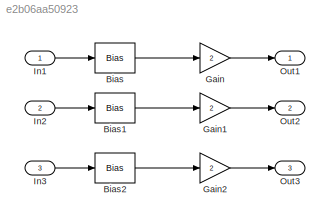
MODEL slx_e2b06aa50923
KIND model
BLOCK [Bias] Bias
  Bias = 2
  SaturateOnIntegerOverflow = off
BLOCK [Bias] Bias1
  Bias = 2
  SaturateOnIntegerOverflow = off
BLOCK [Bias] Bias2
  Bias = 2
  SaturateOnIntegerOverflow = off
BLOCK [Gain] Gain
  Gain = 2
  OutDataTypeStr = uint8
  ParamDataTypeStr = Inherit: Inherit via internal rule
  SaturateOnIntegerOverflow = off
BLOCK [Gain] Gain1
  Gain = 2
  OutDataTypeStr = uint8
  ParamDataTypeStr = Inherit: Inherit via internal rule
  SaturateOnIntegerOverflow = off
BLOCK [Gain] Gain2
  Gain = 2
  OutDataTypeStr = int32
  ParamDataTypeStr = Inherit: Inherit via internal rule
  SaturateOnIntegerOverflow = off
BLOCK [Inport] In1
  IconDisplay = Port number
  OutDataTypeStr = uint8
  PortDimensions = 1
  SampleTime = [0.10000000000000001,0]
  SamplingMode = Sample based
  SignalType = real
BLOCK [Inport] In2
  IconDisplay = Port number
  OutDataTypeStr = uint8
  Port = 2
  PortDimensions = 2
  SampleTime = [0.10000000000000001,0]
  SamplingMode = Sample based
  SignalType = real
BLOCK [Inport] In3
  IconDisplay = Port number
  OutDataTypeStr = int32
  Port = 3
  PortDimensions = 2
  SampleTime = [0.10000000000000001,0]
  SamplingMode = Sample based
  SignalType = real
BLOCK [Outport] Out1
  IconDisplay = Port number
  OutDataTypeStr = uint8
  PortDimensions = 1
  SampleTime = [0.10000000000000001,0]
  SamplingMode = Sample based
  SignalType = real
BLOCK [Outport] Out2
  IconDisplay = Port number
  OutDataTypeStr = uint8
  Port = 2
  PortDimensions = 2
  SampleTime = [0.10000000000000001,0]
  SamplingMode = Sample based
  SignalType = real
BLOCK [Outport] Out3
  IconDisplay = Port number
  OutDataTypeStr = int32
  Port = 3
  PortDimensions = 2
  SampleTime = [0.10000000000000001,0]
  SamplingMode = Sample based
  SignalType = real
LINE Bias1:1 -> Gain1:1
LINE Bias2:1 -> Gain2:1
LINE Bias:1 -> Gain:1
LINE Gain1:1 -> Out2:1
LINE Gain2:1 -> Out3:1
LINE Gain:1 -> Out1:1
LINE In1:1 -> Bias:1
LINE In2:1 -> Bias1:1
LINE In3:1 -> Bias2:1
